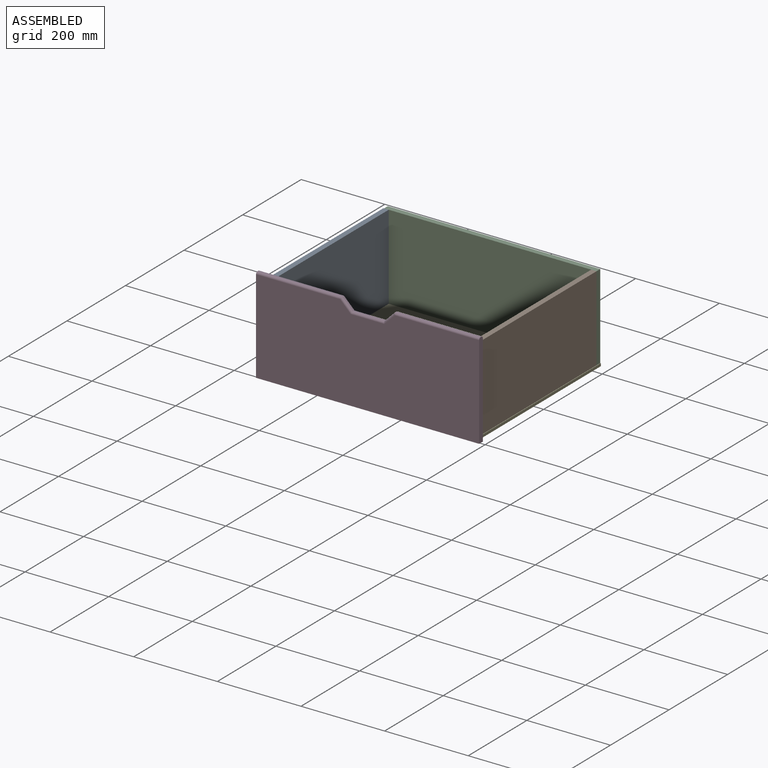
[diagram: assembled view]
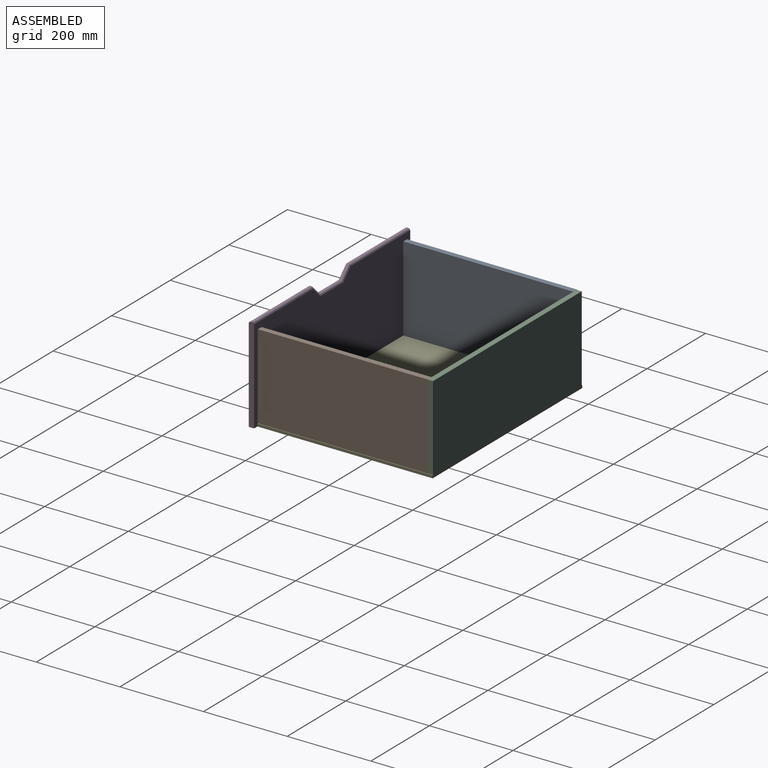
[diagram: assembled view, second angle]
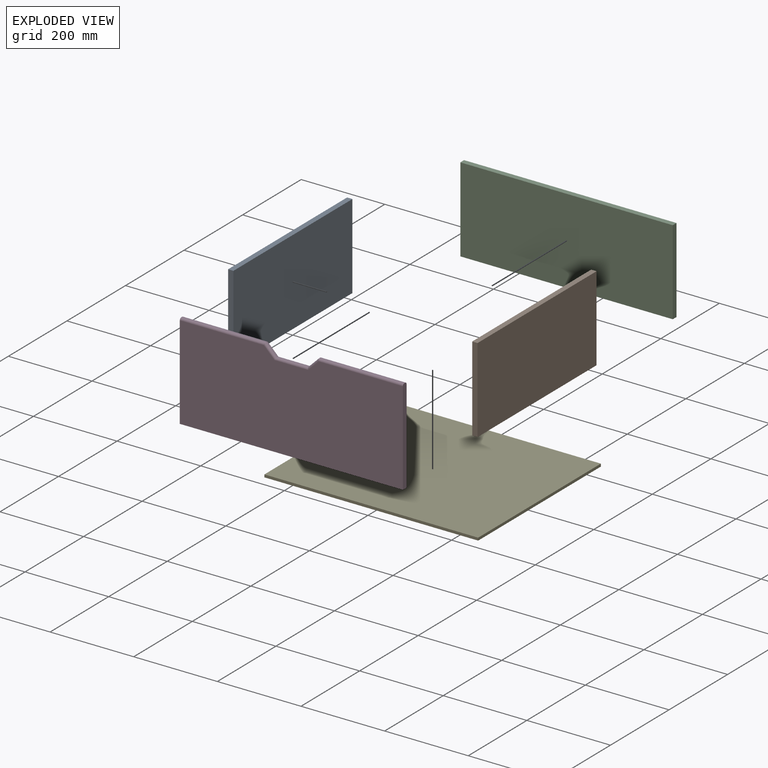
[diagram: exploded view]
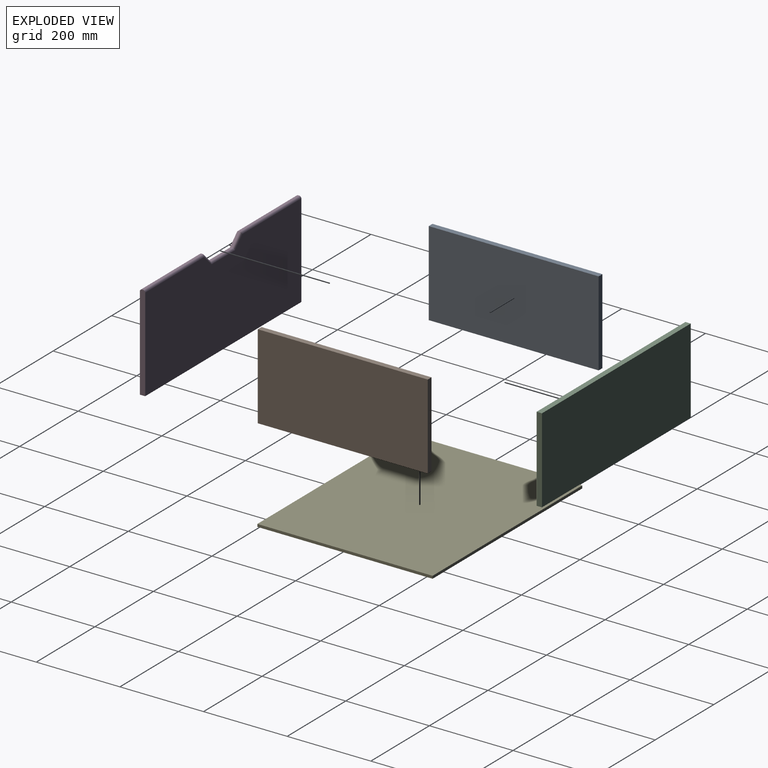
[diagram: exploded view, second angle]
ASSEMBLY  parts=5 mates=4
PART A: 6 faces, bbox 406.4x12.7x203.2 mm
  f0: plane 406.4x12.7mm, normal (0,0,1), area 5161.3mm2, adj f1,f3,f4,f5
  f1: plane 203.2x12.7mm, normal (-1,0,0), area 2580.6mm2, adj f0,f2,f4,f5
  f2: plane 406.4x12.7mm, normal (0,0,-1), area 5161.3mm2, adj f1,f3,f4,f5
  f3: plane 203.2x12.7mm, normal (1,0,0), area 2580.6mm2, adj f0,f2,f4,f5
  f4: plane 406.4x203.2mm, normal (0,-1,0), area 82580.5mm2, adj f0,f1,f2,f3
  f5: plane 406.4x203.2mm, normal (0,1,0), area 82580.5mm2, adj f0,f1,f2,f3
PART B: same geometry as A
PART C: 6 faces, bbox 508x12.7x203.2 mm
  f0: plane 508x12.7mm, normal (0,0,1), area 6451.6mm2, adj f1,f3,f4,f5
  f1: plane 203.2x12.7mm, normal (-1,0,0), area 2580.6mm2, adj f0,f2,f4,f5
  f2: plane 508x12.7mm, normal (0,0,-1), area 6451.6mm2, adj f1,f3,f4,f5
  f3: plane 203.2x12.7mm, normal (1,0,0), area 2580.6mm2, adj f0,f2,f4,f5
  f4: plane 508x203.2mm, normal (0,-1,0), area 103225.6mm2, adj f0,f1,f2,f3
  f5: plane 508x203.2mm, normal (0,1,0), area 103225.6mm2, adj f0,f1,f2,f3
PART D: 20 faces, bbox 533.4x12.7x228.6 mm
  f0: plane 203.2x2.54mm, normal (0,0,1), area 516.1mm2, adj f6,f7,f14,f17
  f1: plane 533.4x223.52mm, normal (0,-1,0), area 116538mm2, adj f4,f5,f6,f10,f11,f12,f13,f14
  f2: plane 533.4x223.52mm, normal (0,1,0), area 116538mm2, adj f4,f5,f6,f15,f16,f17,f18,f19
  f3: plane 203.2x2.54mm, normal (0,0,1), area 516.1mm2, adj f4,f8,f10,f15
  f4: plane 228.6x12.7mm, normal (-1,0,0), area 2892.1mm2, adj f1,f2,f3,f5,f10,f15
  f5: plane 533.4x12.7mm, normal (0,0,-1), area 6774.2mm2, adj f1,f2,f4,f6
  f6: plane 228.6x12.7mm, normal (1,0,0), area 2892.1mm2, adj f0,f1,f2,f5,f14,f17
  f7: plane 25.4x25.4mm, normal (-0.71,0,0.71), area 91.2mm2, adj f0,f9,f13,f19
  f8: plane 25.4x25.4mm, normal (0.71,0,0.71), area 91.2mm2, adj f3,f9,f11,f16
  f9: plane 76.2x2.54mm, normal (0,0,1), area 193.5mm2, adj f7,f8,f12,f18
  f10: cylinder r=5.08mm len=203.2mm, axis (1,0,0), area 1615.4mm2, adj f1,f3,f4,f11
  f11: cylinder r=5.08mm len=30.48mm, axis (-0.71,0,0.71), area 286.6mm2, adj f1,f8,f10,f12
  f12: cylinder r=5.08mm len=80.41mm, axis (-1,0,0), area 620.3mm2, adj f1,f9,f11,f13
  f13: cylinder r=5.08mm len=30.48mm, axis (-0.71,0,-0.71), area 286.6mm2, adj f1,f7,f12,f14
  f14: cylinder r=5.08mm len=203.2mm, axis (1,0,0), area 1615.4mm2, adj f0,f1,f6,f13
  f15: cylinder r=5.08mm len=203.2mm, axis (-1,0,0), area 1615.4mm2, adj f2,f3,f4,f16
  f16: cylinder r=5.08mm len=30.48mm, axis (0.71,0,-0.71), area 286.6mm2, adj f2,f8,f15,f18
  f17: cylinder r=5.08mm len=203.2mm, axis (-1,0,0), area 1615.4mm2, adj f0,f2,f6,f19
  f18: cylinder r=5.08mm len=80.41mm, axis (1,0,0), area 620.3mm2, adj f2,f9,f16,f19
  f19: cylinder r=5.08mm len=30.48mm, axis (0.71,0,0.71), area 286.6mm2, adj f2,f7,f17,f18
PART E: 6 faces, bbox 511.2x419.1x6.4 mm
  f0: plane 511.18x6.35mm, normal (0,1,0), area 3246mm2, adj f1,f3,f4,f5
  f1: plane 419.1x6.35mm, normal (-1,0,0), area 2661.3mm2, adj f0,f2,f4,f5
  f2: plane 511.18x6.35mm, normal (0,-1,0), area 3246mm2, adj f1,f3,f4,f5
  f3: plane 419.1x6.35mm, normal (1,0,0), area 2661.3mm2, adj f0,f2,f4,f5
  f4: plane 511.18x419.1mm, normal (0,0,1), area 214233.4mm2, adj f0,f1,f2,f3
  f5: plane 511.18x419.1mm, normal (0,0,-1), area 214233.4mm2, adj f0,f1,f2,f3
PLACE A rot(axis=(0,0,-1),90deg) t=(-241.03,211.98,2.03)mm
PLACE B rot(axis=(0,0,-1),90deg) t=(255.86,211.98,2.03)mm
PLACE C t=(1.86,427.88,2.03)mm
PLACE D t=(1.86,8.78,8.38)mm
PLACE E t=(1.86,218.33,-105.92)mm
MATE fastened E.f1 <-> A.f4  axis (-1,0,0) through (-253.73,8.78,-99.57)mm
MATE fastened C.f4 <-> B.f1  axis (0,-1,0) through (255.86,415.18,-99.57)mm
MATE fastened E.f2 <-> D.f2  axis (0,-1,0) through (1.86,8.78,-105.92)mm
MATE fastened C.f5 <-> E.f0  axis (0,1,0) through (1.86,427.88,-99.57)mm
